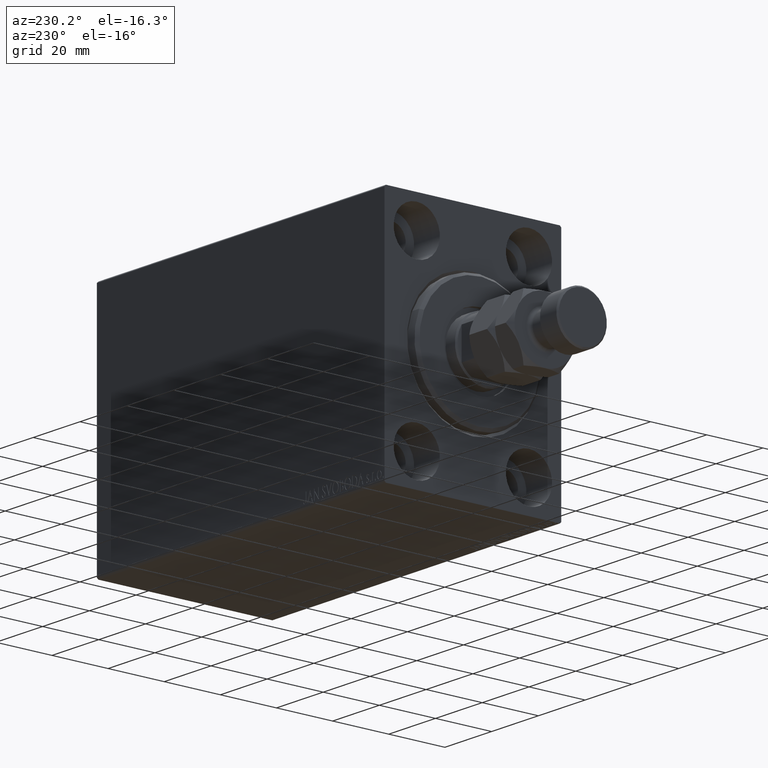
[diagram: clean part render]
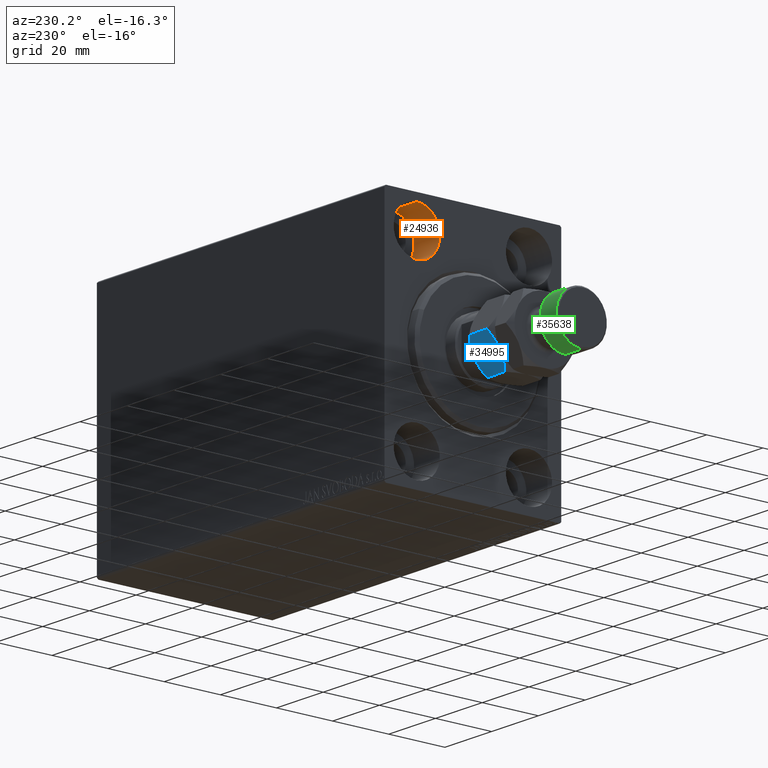
[diagram: same view with three faces highlighted in distinct colors, each labeled with its STEP entity id]
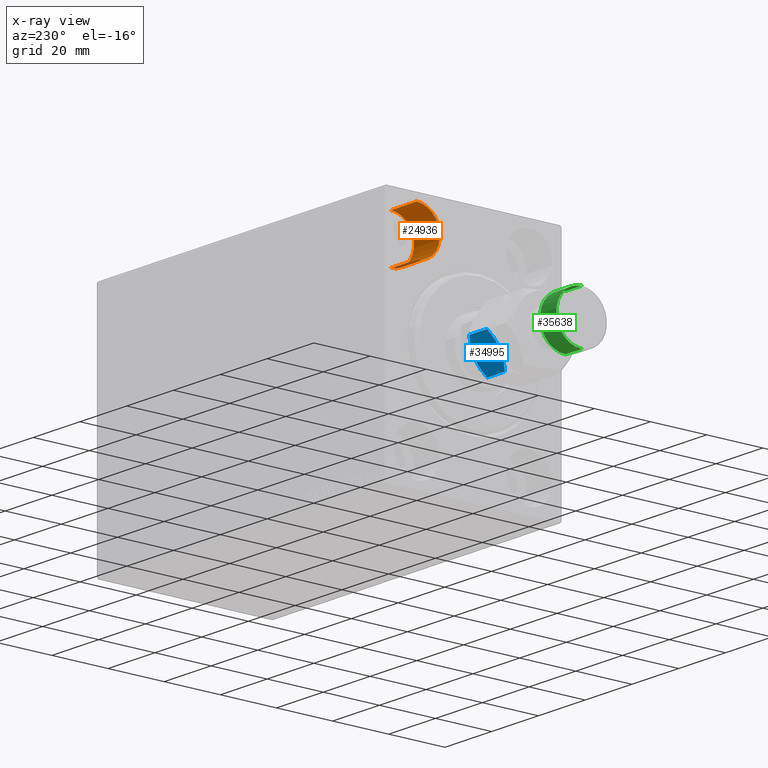
[diagram: x-ray of the same camera — body ghosted, the three highlighted faces saturated]
A machine part, auxiliary view with three faces highlighted in distinct colors.
The next image is the same camera in x-ray (body ghosted, the three faces saturated) — at least one of them is partly hidden behind the body in this view.
Their STEP definitions:

[orange] entity #24936 — the highlighted cylindrical surface (edge-blend (fillet) strip) has radius 8.25 mm, axis along (-1, -0, -0).
#1115 = VERTEX_POINT ( 'NONE', #35514 ) ;
#1382 = CARTESIAN_POINT ( 'NONE',  ( 11.00000000000000000, 20.00000000000000355, 23.25000000000000355 ) ) ;
#2032 = VERTEX_POINT ( 'NONE', #13656 ) ;
#2638 = CARTESIAN_POINT ( 'NONE',  ( 11.00000000000000000, 20.00000000000000355, 31.50000000000000000 ) ) ;
#3458 = EDGE_CURVE ( 'NONE', #1115, #45224, #20212, .T. ) ;
#5276 = ORIENTED_EDGE ( 'NONE', *, *, #36892, .F. ) ;
#8148 = LINE ( 'NONE', #8586, #9120 ) ;
#8586 = CARTESIAN_POINT ( 'NONE',  ( 11.00000000000000000, 20.00000000000000355, 39.74999999999999289 ) ) ;
#8851 = CYLINDRICAL_SURFACE ( 'NONE', #17734, 8.249999999999992895 ) ;
#9120 = VECTOR ( 'NONE', #43707, 1000.000000000000000 ) ;
#12336 = VECTOR ( 'NONE', #43619, 1000.000000000000000 ) ;
#13008 = VERTEX_POINT ( 'NONE', #43816 ) ;
#13656 = CARTESIAN_POINT ( 'NONE',  ( 11.00000000000000000, 20.00000000000000355, 39.74999999999999289 ) ) ;
#14970 = DIRECTION ( 'NONE',  ( -1.000000000000000000, 0.000000000000000000, 0.000000000000000000 ) ) ;
#15319 = CARTESIAN_POINT ( 'NONE',  ( 0.000000000000000000, 20.00000000000000355, 39.74999999999999289 ) ) ;
#15620 = LINE ( 'NONE', #1382, #12336 ) ;
#16420 = FACE_OUTER_BOUND ( 'NONE', #40037, .T. ) ;
#16822 = DIRECTION ( 'NONE',  ( -1.000000000000000000, 0.000000000000000000, 0.000000000000000000 ) ) ;
#17734 = AXIS2_PLACEMENT_3D ( 'NONE', #2638, #33641, #29745 ) ;
#19103 = CARTESIAN_POINT ( 'NONE',  ( 11.00000000000000000, 20.00000000000000355, 31.50000000000000000 ) ) ;
#19322 = EDGE_CURVE ( 'NONE', #13008, #2032, #35894, .T. ) ;
#20212 = CIRCLE ( 'NONE', #24595, 8.249999999999992895 ) ;
#24435 = ORIENTED_EDGE ( 'NONE', *, *, #3458, .T. ) ;
#24595 = AXIS2_PLACEMENT_3D ( 'NONE', #26913, #16822, #41374 ) ;
#24936 = ADVANCED_FACE ( 'NONE', ( #16420 ), #8851, .F. ) ;
#25308 = DIRECTION ( 'NONE',  ( 0.000000000000000000, 0.000000000000000000, 1.000000000000000000 ) ) ;
#26913 = CARTESIAN_POINT ( 'NONE',  ( 0.000000000000000000, 20.00000000000000355, 31.50000000000000000 ) ) ;
#27260 = ORIENTED_EDGE ( 'NONE', *, *, #19322, .F. ) ;
#29745 = DIRECTION ( 'NONE',  ( 0.000000000000000000, 0.000000000000000000, 1.000000000000000000 ) ) ;
#33641 = DIRECTION ( 'NONE',  ( -1.000000000000000000, -0.000000000000000000, -0.000000000000000000 ) ) ;
#35514 = CARTESIAN_POINT ( 'NONE',  ( 0.000000000000000000, 20.00000000000000355, 23.25000000000000355 ) ) ;
#35894 = CIRCLE ( 'NONE', #39559, 8.249999999999992895 ) ;
#36892 = EDGE_CURVE ( 'NONE', #2032, #45224, #8148, .T. ) ;
#39559 = AXIS2_PLACEMENT_3D ( 'NONE', #19103, #14970, #25308 ) ;
#40037 = EDGE_LOOP ( 'NONE', ( #27260, #43496, #24435, #5276 ) ) ;
#40760 = EDGE_CURVE ( 'NONE', #13008, #1115, #15620, .T. ) ;
#41374 = DIRECTION ( 'NONE',  ( 0.000000000000000000, 0.000000000000000000, 1.000000000000000000 ) ) ;
#43496 = ORIENTED_EDGE ( 'NONE', *, *, #40760, .T. ) ;
#43619 = DIRECTION ( 'NONE',  ( -1.000000000000000000, -0.000000000000000000, -0.000000000000000000 ) ) ;
#43707 = DIRECTION ( 'NONE',  ( -1.000000000000000000, -0.000000000000000000, -0.000000000000000000 ) ) ;
#43816 = CARTESIAN_POINT ( 'NONE',  ( 11.00000000000000000, 20.00000000000000355, 23.25000000000000355 ) ) ;
#45224 = VERTEX_POINT ( 'NONE', #15319 ) ;

[blue] entity #34995 — the highlighted planar face has unit normal (0, -0.866, 0.5).
#312 = CARTESIAN_POINT ( 'NONE',  ( -5.499999999999992895, 9.526279441628830114, 0.000000000000000000 ) ) ;
#426 = CARTESIAN_POINT ( 'NONE',  ( -5.499999999999992895, 9.526279441628830114, 0.000000000000000000 ) ) ;
#534 = CARTESIAN_POINT ( 'NONE',  ( -1.748214531935804672, 11.69237379155741330, 0.7776848045220272621 ) ) ;
#1987 = CARTESIAN_POINT ( 'NONE',  ( -5.499999999999990230, 9.526279441628824785, 11.00000000000000000 ) ) ;
#2361 = ORIENTED_EDGE ( 'NONE', *, *, #13764, .T. ) ;
#2734 = CARTESIAN_POINT ( 'NONE',  ( 9.006588997586899406E-16, 12.70170592217176342, 1.701705922171758312 ) ) ;
#3083 = CARTESIAN_POINT ( 'NONE',  ( -5.499999999999990230, 9.526279441628824785, 11.00000000000000000 ) ) ;
#3531 = CARTESIAN_POINT ( 'NONE',  ( -3.602926119288147433, 10.62155555733042434, 0.1689086083647601266 ) ) ;
#3803 = CARTESIAN_POINT ( 'NONE',  ( -10.13752086928278118, 6.848805519375908979, 1.203753363881748362 ) ) ;
#4370 = B_SPLINE_CURVE_WITH_KNOTS ( 'NONE', 3,
 ( #33573, #9466, #37478, #30126, #6024, #40689 ),
 .UNSPECIFIED., .F., .F.,
 ( 4, 2, 4 ),
 ( 0.006583488920348289086, 0.009852050593448704457, 0.01312061226654911983 ),
 .UNSPECIFIED. ) ;
#5282 = DIRECTION ( 'NONE',  ( -0.000000000000000000, -0.000000000000000000, -1.000000000000000000 ) ) ;
#6024 = CARTESIAN_POINT ( 'NONE',  ( -10.13851939750335696, 6.848229018838968507, 9.795670135581390880 ) ) ;
#6796 = CARTESIAN_POINT ( 'NONE',  ( -5.981709287746635795, 9.248164454677164414, 1.734723475976807094E-15 ) ) ;
#6982 = CARTESIAN_POINT ( 'NONE',  ( -0.8614806024966418230, 12.20432986441868728, 1.204329864418604235 ) ) ;
#7337 = LINE ( 'NONE', #10552, #27793 ) ;
#9334 = EDGE_LOOP ( 'NONE', ( #10452, #28857, #25880, #29235, #2361, #11379 ) ) ;
#9466 = CARTESIAN_POINT ( 'NONE',  ( -6.456670474420569406, 8.973945485696344093, 11.00000000000000000 ) ) ;
#10452 = ORIENTED_EDGE ( 'NONE', *, *, #45347, .F. ) ;
#10552 = CARTESIAN_POINT ( 'NONE',  ( 0.000000000000000000, 12.70170592217176342, 11.00000000000000000 ) ) ;
#10720 = EDGE_CURVE ( 'NONE', #17773, #24301, #4370, .T. ) ;
#10925 = VERTEX_POINT ( 'NONE', #41209 ) ;
#11265 = AXIS2_PLACEMENT_3D ( 'NONE', #37757, #39053, #21625 ) ;
#11379 = ORIENTED_EDGE ( 'NONE', *, *, #18447, .F. ) ;
#12968 = CARTESIAN_POINT ( 'NONE',  ( -1.744478007639206130, 11.69453107486589083, 10.21937661245322637 ) ) ;
#13641 = PLANE ( 'NONE',  #11265 ) ;
#13764 = EDGE_CURVE ( 'NONE', #26982, #31104, #7337, .T. ) ;
#14093 = CARTESIAN_POINT ( 'NONE',  ( -4.543329525579419048, 10.07861339756131791, 1.768604793866978714E-15 ) ) ;
#17132 = CARTESIAN_POINT ( 'NONE',  ( -5.499999999999992895, 9.526279441628830114, 0.000000000000000000 ) ) ;
#17679 = DIRECTION ( 'NONE',  ( -0.000000000000000000, -0.000000000000000000, -1.000000000000000000 ) ) ;
#17773 = VERTEX_POINT ( 'NONE', #1987 ) ;
#18447 = EDGE_CURVE ( 'NONE', #38404, #31104, #32888, .T. ) ;
#18549 = CARTESIAN_POINT ( 'NONE',  ( -4.327962126576701651E-16, 12.70170592217176342, 9.298294077828241910 ) ) ;
#21035 = CARTESIAN_POINT ( 'NONE',  ( -6.470625887979888802, 8.965888323921223702, 0.04365929743512723255 ) ) ;
#21625 = DIRECTION ( 'NONE',  ( 0.8660254037844389297, 0.4999999999999992784, 0.000000000000000000 ) ) ;
#22514 = CARTESIAN_POINT ( 'NONE',  ( -11.00000000000000000, 6.350852961085890591, 11.00000000000000000 ) ) ;
#24301 = VERTEX_POINT ( 'NONE', #32087 ) ;
#25880 = ORIENTED_EDGE ( 'NONE', *, *, #10720, .F. ) ;
#26173 = LINE ( 'NONE', #22514, #41965 ) ;
#26967 = CARTESIAN_POINT ( 'NONE',  ( -3.115032419653383400, 10.90324111615047542, 10.67178078790959539 ) ) ;
#26982 = VERTEX_POINT ( 'NONE', #18549 ) ;
#27302 = B_SPLINE_CURVE_WITH_KNOTS ( 'NONE', 3,
 ( #33859, #44416, #12968, #26967, #41201, #38216, #44878, #3083 ),
 .UNSPECIFIED., .F., .F.,
 ( 4, 2, 2, 4 ),
 ( 2.544311317609508508E-07, 0.003291871675740026034, 0.004937680298044156910, 0.006583488920348289086 ),
 .UNSPECIFIED. ) ;
#27613 = EDGE_CURVE ( 'NONE', #26982, #17773, #27302, .T. ) ;
#27793 = VECTOR ( 'NONE', #17679, 1000.000000000000000 ) ;
#28135 = CARTESIAN_POINT ( 'NONE',  ( -11.00000000000000000, 6.350852961085892368, 1.701705922171765195 ) ) ;
#28719 = B_SPLINE_CURVE_WITH_KNOTS ( 'NONE', 3,
 ( #28135, #3803, #44910, #41910, #38470, #21035, #6796, #17132 ),
 .UNSPECIFIED., .F., .F.,
 ( 4, 2, 2, 4 ),
 ( 2.544311317612473652E-07, 0.003291871675740032539, 0.004937680298044168185, 0.006583488920348303831 ),
 .UNSPECIFIED. ) ;
#28857 = ORIENTED_EDGE ( 'NONE', *, *, #31031, .F. ) ;
#29235 = ORIENTED_EDGE ( 'NONE', *, *, #27613, .F. ) ;
#30126 = CARTESIAN_POINT ( 'NONE',  ( -9.251785468064188223, 7.360185091700242488, 10.22231519547797340 ) ) ;
#31031 = EDGE_CURVE ( 'NONE', #24301, #10925, #26173, .T. ) ;
#31099 = CARTESIAN_POINT ( 'NONE',  ( 9.006588997586899406E-16, 12.70170592217176342, 1.701705922171758312 ) ) ;
#31104 = VERTEX_POINT ( 'NONE', #2734 ) ;
#32087 = CARTESIAN_POINT ( 'NONE',  ( -11.00000000000000000, 6.350852961085890591, 9.298294077828234805 ) ) ;
#32888 = B_SPLINE_CURVE_WITH_KNOTS ( 'NONE', 3,
 ( #312, #14093, #3531, #534, #6982, #31099 ),
 .UNSPECIFIED., .F., .F.,
 ( 4, 2, 4 ),
 ( 0.006583488920348303831, 0.009852050593448711396, 0.01312061226654911809 ),
 .UNSPECIFIED. ) ;
#33573 = CARTESIAN_POINT ( 'NONE',  ( -5.499999999999990230, 9.526279441628824785, 11.00000000000000000 ) ) ;
#33859 = CARTESIAN_POINT ( 'NONE',  ( -4.327962126576701651E-16, 12.70170592217176342, 9.298294077828241910 ) ) ;
#34995 = ADVANCED_FACE ( 'NONE', ( #35845 ), #13641, .F. ) ;
#35845 = FACE_OUTER_BOUND ( 'NONE', #9334, .T. ) ;
#37478 = CARTESIAN_POINT ( 'NONE',  ( -7.397073880711845462, 8.431003325927239445, 10.83109139163524404 ) ) ;
#37757 = CARTESIAN_POINT ( 'NONE',  ( 0.000000000000000000, 12.70170592217176342, 11.00000000000000000 ) ) ;
#38216 = CARTESIAN_POINT ( 'NONE',  ( -4.529374112020101428, 10.08667055933643830, 10.95634070256487469 ) ) ;
#38404 = VERTEX_POINT ( 'NONE', #426 ) ;
#38470 = CARTESIAN_POINT ( 'NONE',  ( -7.420105971005176215, 8.417705742396382362, 0.2081220748670755127 ) ) ;
#39053 = DIRECTION ( 'NONE',  ( 0.4999999999999993339, -0.8660254037844390407, 0.000000000000000000 ) ) ;
#40689 = CARTESIAN_POINT ( 'NONE',  ( -11.00000000000000000, 6.350852961085890591, 9.298294077828234805 ) ) ;
#41201 = CARTESIAN_POINT ( 'NONE',  ( -3.579894028994817123, 10.63485314086127786, 10.79187792513292798 ) ) ;
#41209 = CARTESIAN_POINT ( 'NONE',  ( -11.00000000000000000, 6.350852961085892368, 1.701705922171765195 ) ) ;
#41910 = CARTESIAN_POINT ( 'NONE',  ( -7.884967580346608607, 8.149317767107183030, 0.3282192120904074417 ) ) ;
#41965 = VECTOR ( 'NONE', #5282, 1000.000000000000000 ) ;
#44416 = CARTESIAN_POINT ( 'NONE',  ( -0.8624791307172121613, 12.20375336388174681, 9.796246636118258522 ) ) ;
#44878 = CARTESIAN_POINT ( 'NONE',  ( -5.018290712253354435, 9.804394428580495813, 11.00000000000000178 ) ) ;
#44910 = CARTESIAN_POINT ( 'NONE',  ( -9.255521992360788985, 7.358027808391769398, 0.7806233875467772920 ) ) ;
#45347 = EDGE_CURVE ( 'NONE', #10925, #38404, #28719, .T. ) ;

[green] entity #35638 — the highlighted cylindrical surface (edge-blend (fillet) strip) has radius 9 mm, axis along (1, -0, -0).
#2386 = CARTESIAN_POINT ( 'NONE',  ( 9.000000000000000000, 1.102182119232617714E-15, 27.50000000000000000 ) ) ;
#4976 = VERTEX_POINT ( 'NONE', #15656 ) ;
#6091 = CARTESIAN_POINT ( 'NONE',  ( -9.000000000000000000, 0.000000000000000000, 27.50000000000000000 ) ) ;
#6626 = ORIENTED_EDGE ( 'NONE', *, *, #41806, .F. ) ;
#7287 = EDGE_LOOP ( 'NONE', ( #28177, #44216, #7480, #6626 ) ) ;
#7480 = ORIENTED_EDGE ( 'NONE', *, *, #40703, .T. ) ;
#8606 = VERTEX_POINT ( 'NONE', #2386 ) ;
#9410 = AXIS2_PLACEMENT_3D ( 'NONE', #41387, #31068, #30141 ) ;
#9876 = DIRECTION ( 'NONE',  ( 1.000000000000000000, 0.000000000000000000, 0.000000000000000000 ) ) ;
#10511 = EDGE_CURVE ( 'NONE', #4976, #8606, #23603, .T. ) ;
#11624 = CIRCLE ( 'NONE', #9410, 9.000000000000000000 ) ;
#15656 = CARTESIAN_POINT ( 'NONE',  ( 9.000000000000000000, 1.102182119232617714E-15, 34.49999999999999289 ) ) ;
#19693 = DIRECTION ( 'NONE',  ( -1.000000000000000000, 0.000000000000000000, 0.000000000000000000 ) ) ;
#20154 = CYLINDRICAL_SURFACE ( 'NONE', #27420, 9.000000000000000000 ) ;
#22210 = VERTEX_POINT ( 'NONE', #30533 ) ;
#23127 = CARTESIAN_POINT ( 'NONE',  ( 0.000000000000000000, 0.000000000000000000, 35.00000000000000000 ) ) ;
#23435 = DIRECTION ( 'NONE',  ( 0.000000000000000000, 0.000000000000000000, -1.000000000000000000 ) ) ;
#23603 = LINE ( 'NONE', #42107, #35767 ) ;
#25654 = EDGE_CURVE ( 'NONE', #22210, #4976, #39749, .T. ) ;
#25826 = AXIS2_PLACEMENT_3D ( 'NONE', #34216, #23435, #9876 ) ;
#27420 = AXIS2_PLACEMENT_3D ( 'NONE', #23127, #37366, #19693 ) ;
#28177 = ORIENTED_EDGE ( 'NONE', *, *, #25654, .T. ) ;
#28488 = VECTOR ( 'NONE', #35593, 1000.000000000000000 ) ;
#30141 = DIRECTION ( 'NONE',  ( 1.000000000000000000, 0.000000000000000000, 0.000000000000000000 ) ) ;
#30533 = CARTESIAN_POINT ( 'NONE',  ( -9.000000000000000000, 0.000000000000000000, 34.49999999999999289 ) ) ;
#31068 = DIRECTION ( 'NONE',  ( -0.000000000000000000, -0.000000000000000000, 1.000000000000000000 ) ) ;
#34153 = DIRECTION ( 'NONE',  ( -0.000000000000000000, -0.000000000000000000, -1.000000000000000000 ) ) ;
#34216 = CARTESIAN_POINT ( 'NONE',  ( 0.000000000000000000, 0.000000000000000000, 34.49999999999999289 ) ) ;
#35593 = DIRECTION ( 'NONE',  ( -0.000000000000000000, -0.000000000000000000, -1.000000000000000000 ) ) ;
#35638 = ADVANCED_FACE ( 'NONE', ( #40577 ), #20154, .T. ) ;
#35767 = VECTOR ( 'NONE', #34153, 1000.000000000000000 ) ;
#37366 = DIRECTION ( 'NONE',  ( -0.000000000000000000, -0.000000000000000000, -1.000000000000000000 ) ) ;
#39025 = LINE ( 'NONE', #39479, #28488 ) ;
#39479 = CARTESIAN_POINT ( 'NONE',  ( -9.000000000000000000, 0.000000000000000000, 35.00000000000000000 ) ) ;
#39749 = CIRCLE ( 'NONE', #25826, 9.000000000000000000 ) ;
#39779 = VERTEX_POINT ( 'NONE', #6091 ) ;
#40577 = FACE_OUTER_BOUND ( 'NONE', #7287, .T. ) ;
#40703 = EDGE_CURVE ( 'NONE', #8606, #39779, #11624, .T. ) ;
#41387 = CARTESIAN_POINT ( 'NONE',  ( 0.000000000000000000, 0.000000000000000000, 27.50000000000000000 ) ) ;
#41806 = EDGE_CURVE ( 'NONE', #22210, #39779, #39025, .T. ) ;
#42107 = CARTESIAN_POINT ( 'NONE',  ( 9.000000000000000000, 1.102182119232617714E-15, 35.00000000000000000 ) ) ;
#44216 = ORIENTED_EDGE ( 'NONE', *, *, #10511, .T. ) ;